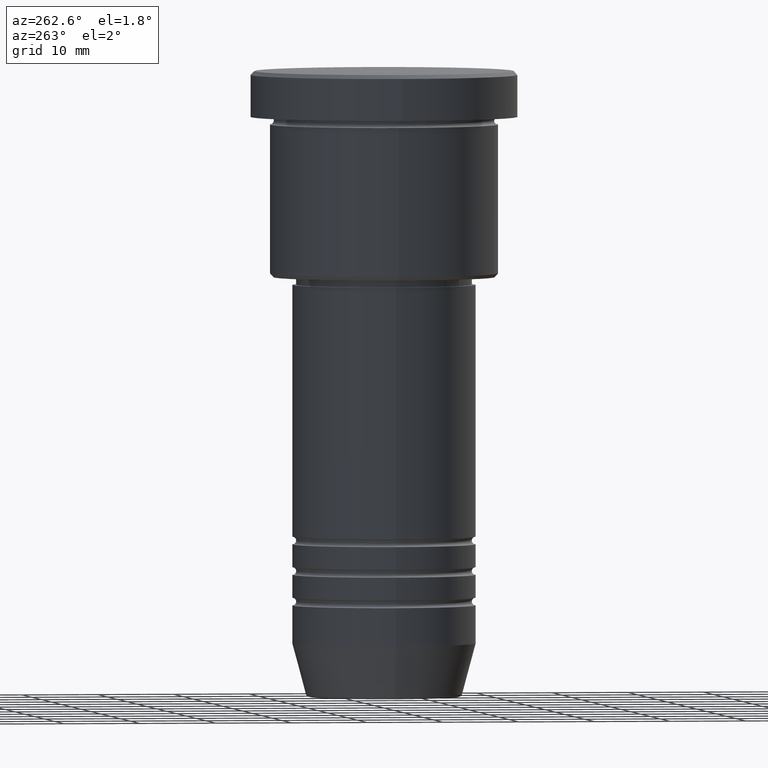
[diagram: clean part render]
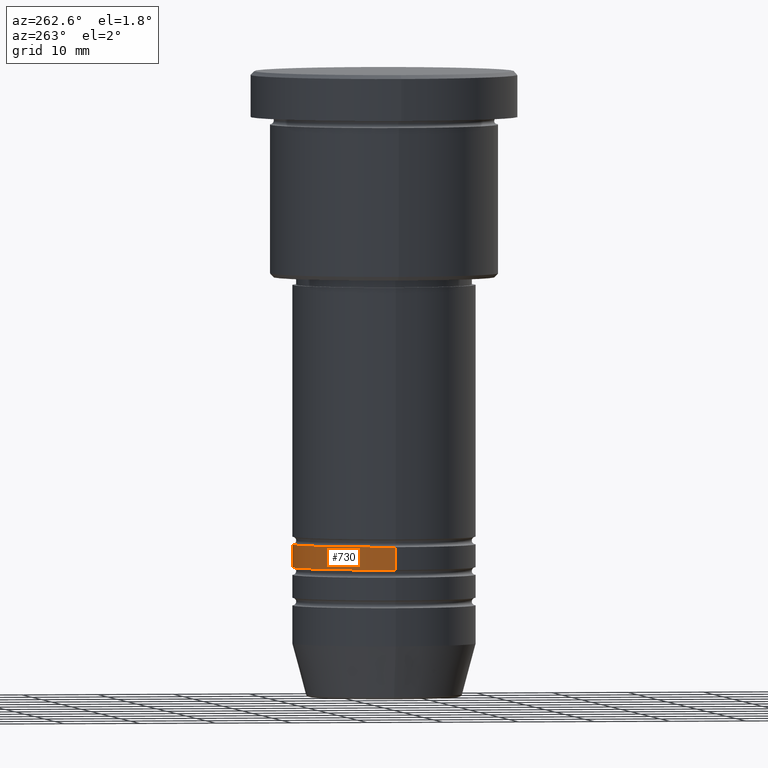
[diagram: same view with one face highlighted and labeled with its STEP entity id]
A machine part, auxiliary view. The second image highlights one B-rep face of the part: STEP entity #730.
In plain terms, the highlighted cylindrical surface (partial cylindrical patch) has radius 12 mm, axis along (-0, -0, 1).
Its self-contained STEP definition (entity closure, byte-faithful):
#26 = FACE_OUTER_BOUND ( 'NONE', #97, .T. ) ;
#36 = EDGE_CURVE ( 'NONE', #611, #575, #870, .T. ) ;
#37 = ORIENTED_EDGE ( 'NONE', *, *, #651, .T. ) ;
#60 = DIRECTION ( 'NONE',  ( -0.000000000000000000, -0.000000000000000000, 1.000000000000000000 ) ) ;
#83 = CARTESIAN_POINT ( 'NONE',  ( -12.00000000000000533, 1.469576158976824539E-15, -64.99999999999990052 ) ) ;
#97 = EDGE_LOOP ( 'NONE', ( #1123, #37, #533, #229 ) ) ;
#106 = DIRECTION ( 'NONE',  ( -0.000000000000000000, -0.000000000000000000, 1.000000000000000000 ) ) ;
#229 = ORIENTED_EDGE ( 'NONE', *, *, #36, .F. ) ;
#281 = CARTESIAN_POINT ( 'NONE',  ( -12.00000000000000000, 1.469576158976824144E-15, -61.99999999999988631 ) ) ;
#296 = CYLINDRICAL_SURFACE ( 'NONE', #938, 12.00000000000000178 ) ;
#374 = CARTESIAN_POINT ( 'NONE',  ( 12.00000000000000355, 0.000000000000000000, -64.99999999999990052 ) ) ;
#468 = CARTESIAN_POINT ( 'NONE',  ( -12.00000000000000178, 1.469576158976824144E-15, 0.000000000000000000 ) ) ;
#474 = DIRECTION ( 'NONE',  ( -0.000000000000000000, -0.000000000000000000, 1.000000000000000000 ) ) ;
#483 = DIRECTION ( 'NONE',  ( 1.000000000000000000, 0.000000000000000000, 0.000000000000000000 ) ) ;
#488 = DIRECTION ( 'NONE',  ( 1.000000000000000000, 0.000000000000000000, 0.000000000000000000 ) ) ;
#533 = ORIENTED_EDGE ( 'NONE', *, *, #947, .F. ) ;
#562 = CARTESIAN_POINT ( 'NONE',  ( 0.000000000000000000, 0.000000000000000000, -64.99999999999990052 ) ) ;
#575 = VERTEX_POINT ( 'NONE', #899 ) ;
#577 = CARTESIAN_POINT ( 'NONE',  ( 0.000000000000000000, 0.000000000000000000, -61.99999999999988631 ) ) ;
#599 = VERTEX_POINT ( 'NONE', #281 ) ;
#611 = VERTEX_POINT ( 'NONE', #374 ) ;
#618 = AXIS2_PLACEMENT_3D ( 'NONE', #577, #745, #488 ) ;
#631 = AXIS2_PLACEMENT_3D ( 'NONE', #562, #106, #483 ) ;
#651 = EDGE_CURVE ( 'NONE', #667, #599, #714, .T. ) ;
#665 = CARTESIAN_POINT ( 'NONE',  ( 0.000000000000000000, 0.000000000000000000, 0.000000000000000000 ) ) ;
#667 = VERTEX_POINT ( 'NONE', #83 ) ;
#714 = LINE ( 'NONE', #468, #1134 ) ;
#730 = ADVANCED_FACE ( 'NONE', ( #26 ), #296, .T. ) ;
#745 = DIRECTION ( 'NONE',  ( -0.000000000000000000, -0.000000000000000000, 1.000000000000000000 ) ) ;
#765 = VECTOR ( 'NONE', #60, 1000.000000000000000 ) ;
#838 = EDGE_CURVE ( 'NONE', #611, #667, #1154, .T. ) ;
#850 = DIRECTION ( 'NONE',  ( 1.000000000000000000, 0.000000000000000000, 0.000000000000000000 ) ) ;
#870 = LINE ( 'NONE', #1053, #765 ) ;
#899 = CARTESIAN_POINT ( 'NONE',  ( 12.00000000000000000, 0.000000000000000000, -61.99999999999988631 ) ) ;
#938 = AXIS2_PLACEMENT_3D ( 'NONE', #665, #1126, #850 ) ;
#947 = EDGE_CURVE ( 'NONE', #575, #599, #1135, .T. ) ;
#1053 = CARTESIAN_POINT ( 'NONE',  ( 12.00000000000000178, 0.000000000000000000, 0.000000000000000000 ) ) ;
#1123 = ORIENTED_EDGE ( 'NONE', *, *, #838, .T. ) ;
#1126 = DIRECTION ( 'NONE',  ( -0.000000000000000000, -0.000000000000000000, 1.000000000000000000 ) ) ;
#1134 = VECTOR ( 'NONE', #474, 1000.000000000000000 ) ;
#1135 = CIRCLE ( 'NONE', #618, 12.00000000000000000 ) ;
#1154 = CIRCLE ( 'NONE', #631, 12.00000000000000355 ) ;